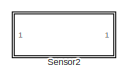
[diagram: root canvas - part 1/3, top center region]
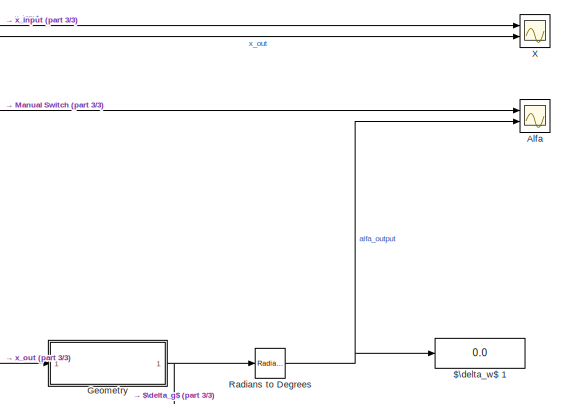
[diagram: root canvas - part 2/3, middle right region]
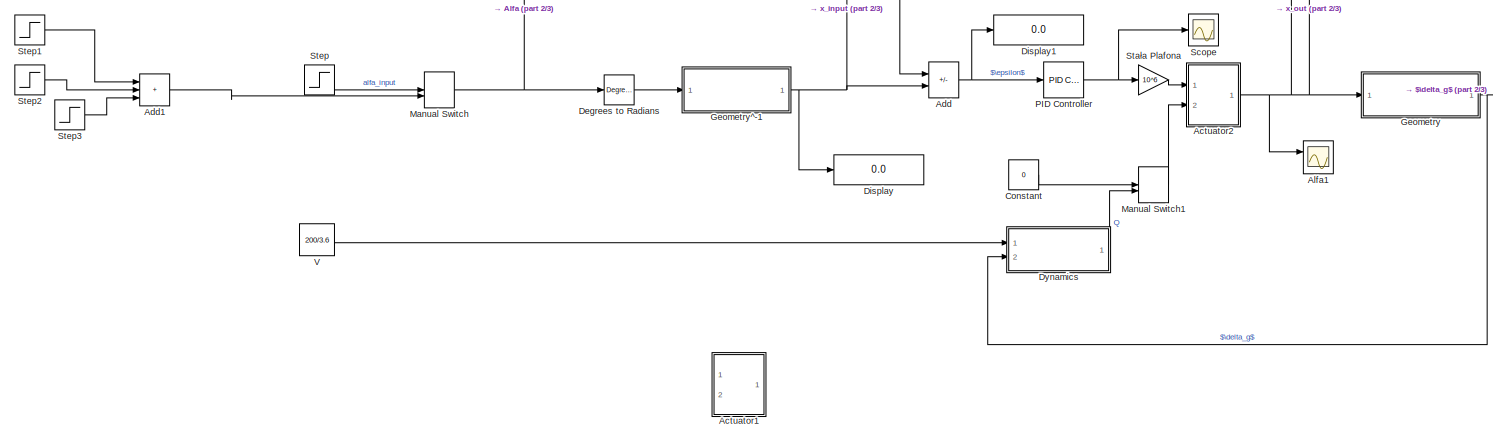
[diagram: root canvas - part 3/3, full width, bottom band]
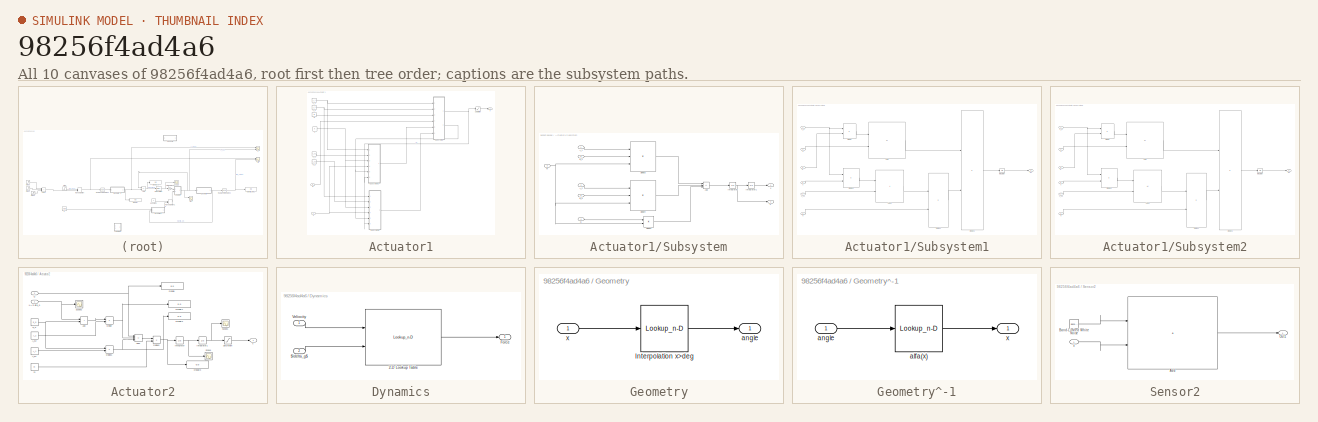
[diagram: thumbnail index - all 10 canvases of the model, root first then tree order]
MODEL slx_98256f4ad4a6
KIND model
CONFIG AbsTol = auto
CONFIG EnableMultiTasking = off
CONFIG FixedStep = auto
CONFIG MaxStep = auto
CONFIG MinStep = auto
CONFIG RelTol = 1e-3
CONFIG SampleTimeConstraint = Unconstrained
CONFIG SolverName = VariableStepAuto
CONFIG StartTime = 0.0
CONFIG StopTime = 2
BLOCK [Display] $\delta_w$ 1
  Decimation = 1
  Ports = [1]
BLOCK [SubSystem] Actuator1
  Commented = on
  Ports = [2, 1]
  RequestExecContextInheritance = off
BLOCK [Constant] Actuator1/A_1
  Value = A_1
BLOCK [Constant] Actuator1/A_2
  Value = A_2
BLOCK [Constant] Actuator1/K
  Value = K
BLOCK [Inport] Actuator1/Q
  Port = 2
BLOCK [Saturate] Actuator1/Saturation
  LowerLimit = x_min
  UpperLimit = x_max
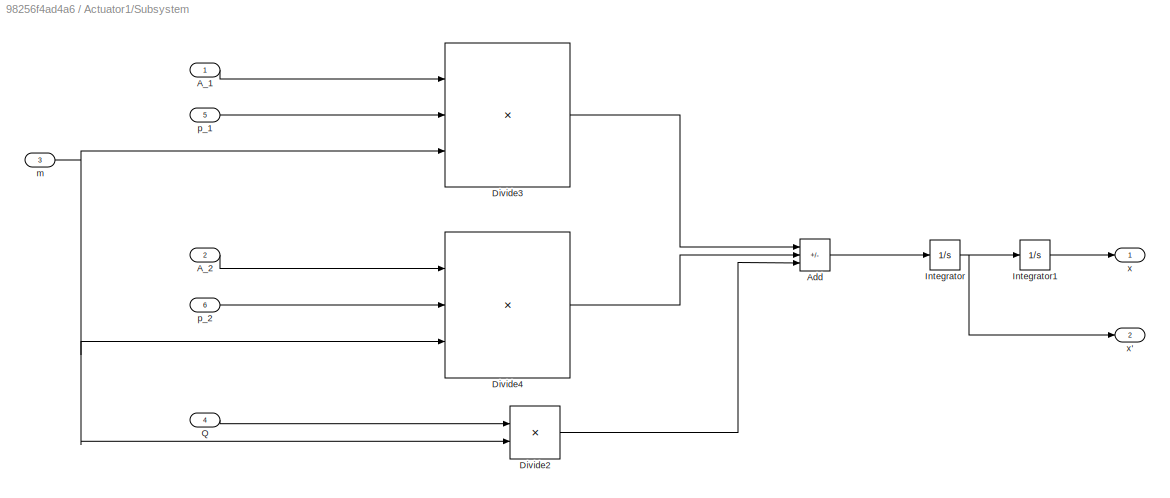
BLOCK [SubSystem] Actuator1/Subsystem
  Ports = [6, 2]
  RequestExecContextInheritance = off
BLOCK [Inport] Actuator1/Subsystem/A_1
BLOCK [Inport] Actuator1/Subsystem/A_2
  Port = 2
BLOCK [Sum] Actuator1/Subsystem/Add
  IconShape = rectangular
  Inputs = +-+
  Ports = [3, 1]
BLOCK [Product] Actuator1/Subsystem/Divide2
  Inputs = */
  Ports = [2, 1]
BLOCK [Product] Actuator1/Subsystem/Divide3
  Inputs = **/
  Ports = [3, 1]
BLOCK [Product] Actuator1/Subsystem/Divide4
  Inputs = **/
  Ports = [3, 1]
BLOCK [Integrator] Actuator1/Subsystem/Integrator
  Ports = [1, 1]
BLOCK [Integrator] Actuator1/Subsystem/Integrator1
  Ports = [1, 1]
BLOCK [Inport] Actuator1/Subsystem/Q
  Port = 4
BLOCK [Inport] Actuator1/Subsystem/m
  Port = 3
BLOCK [Inport] Actuator1/Subsystem/p_1
  Port = 5
BLOCK [Inport] Actuator1/Subsystem/p_2
  Port = 6
BLOCK [Outport] Actuator1/Subsystem/x
BLOCK [Outport] Actuator1/Subsystem/x'
  Port = 2
BLOCK [SubSystem] Actuator1/Subsystem1
  Ports = [6, 1]
  RequestExecContextInheritance = off
BLOCK [Inport] Actuator1/Subsystem1/A_1
BLOCK [Sum] Actuator1/Subsystem1/Add
  IconShape = rectangular
  Inputs = -+
  Ports = [2, 1]
BLOCK [Sum] Actuator1/Subsystem1/Add1
  IconShape = rectangular
  Ports = [2, 1]
BLOCK [Product] Actuator1/Subsystem1/Divide
  Inputs = **
  Ports = [2, 1]
BLOCK [Product] Actuator1/Subsystem1/Divide1
  Inputs = **
  Ports = [2, 1]
BLOCK [Product] Actuator1/Subsystem1/Divide2
  Inputs = */
  Ports = [2, 1]
BLOCK [Product] Actuator1/Subsystem1/Divide3
  Inputs = */
  Ports = [2, 1]
BLOCK [Integrator] Actuator1/Subsystem1/Integrator
  Ports = [1, 1]
BLOCK [Inport] Actuator1/Subsystem1/K
  Port = 3
BLOCK [Inport] Actuator1/Subsystem1/V_01
  Port = 2
BLOCK [Outport] Actuator1/Subsystem1/p1
BLOCK [Inport] Actuator1/Subsystem1/u
  Port = 4
BLOCK [Inport] Actuator1/Subsystem1/x
  Port = 6
BLOCK [Inport] Actuator1/Subsystem1/x'
  Port = 5
BLOCK [SubSystem] Actuator1/Subsystem2
  Ports = [6, 1]
  RequestExecContextInheritance = off
BLOCK [Inport] Actuator1/Subsystem2/A_2
BLOCK [Sum] Actuator1/Subsystem2/Add
  IconShape = rectangular
  Inputs = +-
  Ports = [2, 1]
BLOCK [Sum] Actuator1/Subsystem2/Add1
  IconShape = rectangular
  Inputs = -+
  Ports = [2, 1]
BLOCK [Product] Actuator1/Subsystem2/Divide
  Inputs = **
  Ports = [2, 1]
BLOCK [Product] Actuator1/Subsystem2/Divide1
  Inputs = **
  Ports = [2, 1]
BLOCK [Product] Actuator1/Subsystem2/Divide2
  Inputs = */
  Ports = [2, 1]
BLOCK [Product] Actuator1/Subsystem2/Divide3
  Inputs = */
  Ports = [2, 1]
BLOCK [Integrator] Actuator1/Subsystem2/Integrator
  Ports = [1, 1]
BLOCK [Inport] Actuator1/Subsystem2/K
  Port = 3
BLOCK [Inport] Actuator1/Subsystem2/V_02
  Port = 2
BLOCK [Outport] Actuator1/Subsystem2/p2
BLOCK [Inport] Actuator1/Subsystem2/u
  Port = 4
BLOCK [Inport] Actuator1/Subsystem2/x
  Port = 6
BLOCK [Inport] Actuator1/Subsystem2/x'
  Port = 5
BLOCK [Constant] Actuator1/V_1
  Value = V_01
BLOCK [Constant] Actuator1/V_2
  Value = V_02
BLOCK [Constant] Actuator1/m
  Value = m
BLOCK [Inport] Actuator1/u
BLOCK [Outport] Actuator1/x
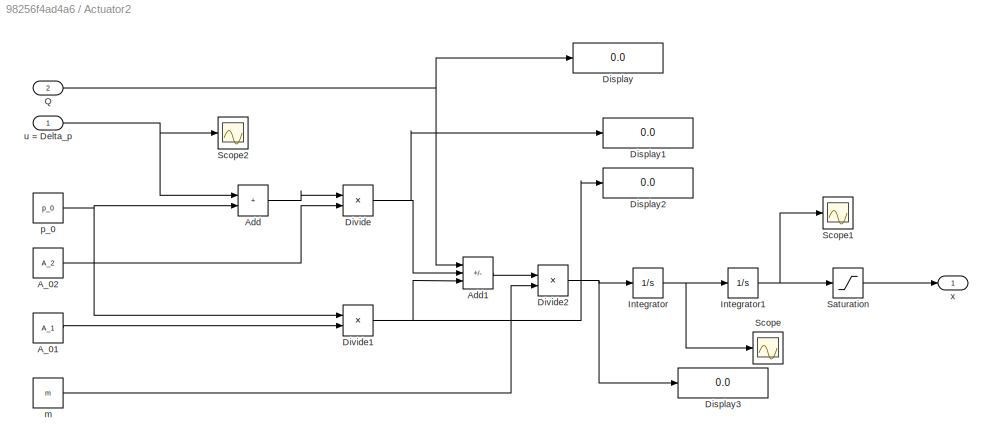
BLOCK [SubSystem] Actuator2
  Ports = [2, 1]
  RequestExecContextInheritance = off
BLOCK [Constant] Actuator2/A_01
  Value = A_1
BLOCK [Constant] Actuator2/A_02
  Value = A_2
BLOCK [Sum] Actuator2/Add
  IconShape = rectangular
  Ports = [2, 1]
BLOCK [Sum] Actuator2/Add1
  IconShape = rectangular
  Inputs = +-+
  Ports = [3, 1]
BLOCK [Display] Actuator2/Display
  Decimation = 1
  Ports = [1]
BLOCK [Display] Actuator2/Display1
  Decimation = 1
  Ports = [1]
BLOCK [Display] Actuator2/Display2
  Decimation = 1
  Ports = [1]
BLOCK [Display] Actuator2/Display3
  Decimation = 1
  Ports = [1]
BLOCK [Product] Actuator2/Divide
  Inputs = **
  Ports = [2, 1]
BLOCK [Product] Actuator2/Divide1
  Inputs = **
  Ports = [2, 1]
BLOCK [Product] Actuator2/Divide2
  Inputs = */
  Ports = [2, 1]
BLOCK [Integrator] Actuator2/Integrator
  Ports = [1, 1]
BLOCK [Integrator] Actuator2/Integrator1
  Ports = [1, 1]
BLOCK [Inport] Actuator2/Q
  Port = 2
BLOCK [Saturate] Actuator2/Saturation
  LowerLimit = x_min
  UpperLimit = x_max
BLOCK [Scope] Actuator2/Scope
  Floating = off
  NumInputPorts = 1
  Ports = [1]
  ScopeSpecificationString = Simulink.scopes.TimeScopeBlockCfg('CurrentConfiguration', extmgr.ConfigurationSet(extmgr.Configuration('Core','General UI',true),extmgr.Configuration('Core','Source UI',true),extmgr.Configuration('Sources','WiredSimulink',true,'DataLoggingVariableName','ScopeData1'),extmgr.Configuration('Visuals','Time Domain',true,'SerializedDisplays',{struct('MinYLimReal','-23.12676','MaxYLimReal','32.29168','YL...<+1375ch>
BLOCK [Scope] Actuator2/Scope1
  Floating = off
  NumInputPorts = 1
  Ports = [1]
  ScopeSpecificationString = Simulink.scopes.TimeScopeBlockCfg('CurrentConfiguration', extmgr.ConfigurationSet(extmgr.Configuration('Core','General UI',true),extmgr.Configuration('Core','Source UI',true),extmgr.Configuration('Sources','WiredSimulink',true,'DataLoggingVariableName','ScopeData2'),extmgr.Configuration('Visuals','Time Domain',true,'SerializedDisplays',{struct('MinYLimReal','-0.00303','MaxYLimReal','0.02726','YLab...<+1370ch>
BLOCK [Scope] Actuator2/Scope2
  Floating = off
  NumInputPorts = 1
  Ports = [1]
  ScopeSpecificationString = Simulink.scopes.TimeScopeBlockCfg('CurrentConfiguration', extmgr.ConfigurationSet(extmgr.Configuration('Core','General UI',true),extmgr.Configuration('Core','Source UI',true),extmgr.Configuration('Sources','WiredSimulink',true,'DataLoggingVariableName','ScopeData3'),extmgr.Configuration('Visuals','Time Domain',true,'SerializedDisplays',{struct('MinYLimReal','-87500.00000','MaxYLimReal','87500.0000...<+1400ch>
BLOCK [Constant] Actuator2/m
  Value = m
BLOCK [Constant] Actuator2/p_0
  Value = p_0
BLOCK [Inport] Actuator2/u = Delta_p
BLOCK [Outport] Actuator2/x
BLOCK [Sum] Add
  IconShape = rectangular
  Inputs = -+
  Ports = [2, 1]
BLOCK [Sum] Add1
  IconShape = rectangular
  Inputs = +++
  Ports = [3, 1]
BLOCK [Scope] Alfa
  Floating = off
  NumInputPorts = 2
  Ports = [2]
  ScopeSpecificationString = Simulink.scopes.TimeScopeBlockCfg('CurrentConfiguration', extmgr.ConfigurationSet(extmgr.Configuration('Core','General UI',true),extmgr.Configuration('Core','Source UI',true),extmgr.Configuration('Sources','WiredSimulink',true),extmgr.Configuration('Visuals','Time Domain',true,'SerializedDisplays',{struct('MinYLimReal','-0.64853','MaxYLimReal','5.83675','YLabelReal','','MinYLimMag','0.00000','MaxY...<+1382ch>
BLOCK [Scope] Alfa1
  Floating = off
  NumInputPorts = 2
  Ports = [2]
  ScopeSpecificationString = Simulink.scopes.TimeScopeBlockCfg('CurrentConfiguration', extmgr.ConfigurationSet(extmgr.Configuration('Core','General UI',true),extmgr.Configuration('Core','Source UI',true),extmgr.Configuration('Sources','WiredSimulink',true,'DataLoggingVariableName','ScopeData1'),extmgr.Configuration('Visuals','Time Domain',true,'SerializedDisplays',{struct('MinYLimReal','-0.00303','MaxYLimReal','0.02726','YLab...<+1481ch>
BLOCK [Constant] Constant
  Value = 0
BLOCK [Reference] Degrees to Radians  REF=simulink_extras/Transformations/Degrees to
Radians
  Ports = [1, 1]
  SourceBlock = simulink_extras/Transformations/Degrees to\nRadians
  SourceProductBaseCode = SL
  SourceType = DegreesToRadians
BLOCK [Display] Display
  Decimation = 1
  Ports = [1]
BLOCK [Display] Display1
  Decimation = 1
  Ports = [1]
BLOCK [SubSystem] Dynamics
  Ports = [2, 1]
  RequestExecContextInheritance = off
BLOCK [Inport] Dynamics/$\delta_g$
  Port = 2
BLOCK [Lookup_n-D] Dynamics/2-D Lookup Table
  BreakpointsForDimension1 = velocity
  BreakpointsForDimension2 = angles
  InputPortMap = u0,u1
  InternalRulePriority = Speed
  Ports = [2, 1]
  RndMeth = Simplest
  Table = F_force
BLOCK [Outport] Dynamics/Force
BLOCK [Inport] Dynamics/Veliocity
BLOCK [SubSystem] Geometry
  Ports = [1, 1]
  RequestExecContextInheritance = off
BLOCK [Lookup_n-D] Geometry/Interpolation x>deg
  BreakpointsForDimension1 = X
  InputPortMap = u0
  InternalRulePriority = Speed
  NumberOfTableDimensions = 1
  Ports = [1, 1]
  RndMeth = Simplest
  Table = RAD
BLOCK [Outport] Geometry/angle
BLOCK [Inport] Geometry/x 
BLOCK [SubSystem] Geometry^-1
  Ports = [1, 1]
  RequestExecContextInheritance = off
BLOCK [Lookup_n-D] Geometry^-1/alfa(x)
  BreakpointsForDimension1 = RAD
  InputPortMap = u0
  InternalRulePriority = Speed
  NumberOfTableDimensions = 1
  Ports = [1, 1]
  RndMeth = Simplest
  Table = X
BLOCK [Inport] Geometry^-1/angle
BLOCK [Outport] Geometry^-1/x
BLOCK [ManualSwitch] Manual Switch
  CurrentSetting = 0
BLOCK [ManualSwitch] Manual Switch1
  CurrentSetting = 0
BLOCK [Reference] PID Controller  REF=slpidlib/PID Controller
  Ports = [1, 1]
  SourceBlock = slpidlib/PID Controller
  SourceProductBaseCode = SL
  SourceType = PID 1dof
BLOCK [Reference] Radians to Degrees  REF=simulink_extras/Transformations/Radians
to Degrees
  Ports = [1, 1]
  SourceBlock = simulink_extras/Transformations/Radians\nto Degrees
  SourceProductBaseCode = SL
  SourceType = RadiansToDegrees
BLOCK [Scope] Scope
  Floating = off
  NumInputPorts = 1
  Ports = [1]
  ScopeSpecificationString = Simulink.scopes.TimeScopeBlockCfg('CurrentConfiguration', extmgr.ConfigurationSet(extmgr.Configuration('Core','General UI',true),extmgr.Configuration('Core','Source UI',true),extmgr.Configuration('Sources','WiredSimulink',true,'DataLoggingVariableName','ScopeData2'),extmgr.Configuration('Visuals','Time Domain',true,'SerializedDisplays',{struct('MinYLimReal','-0.1125','MaxYLimReal','0.1125','YLabel...<+1367ch>
BLOCK [SubSystem] Sensor2
  NameLocation = top
  Ports = [1, 1]
  RequestExecContextInheritance = off
BLOCK [Sum] Sensor2/Add
  IconShape = rectangular
  Ports = [2, 1]
BLOCK [Reference] Sensor2/Band-Limited White Noise  REF=simulink/Sources/Band-Limited
White Noise
  Ports = [0, 1]
  SourceBlock = simulink/Sources/Band-Limited\nWhite Noise
  SourceProductBaseCode = SL
  SourceType = Band-Limited White Noise.
BLOCK [Outport] Sensor2/Out1
BLOCK [Inport] Sensor2/x
BLOCK [Gain] Stała Plafona
  Gain = 10^6
BLOCK [Step] Step
  SampleTime = 0
BLOCK [Step] Step1
  SampleTime = 0
  Time = 0.5
BLOCK [Step] Step2
  After = 2
  Before = 1
  SampleTime = 0
BLOCK [Step] Step3
  After = 0
  Before = 2
  SampleTime = 0
  Time = 1.5
BLOCK [Constant] V
  Value = 200/3.6
BLOCK [Scope] X
  Floating = off
  NumInputPorts = 2
  Ports = [2]
  ScopeSpecificationString = Simulink.scopes.TimeScopeBlockCfg('CurrentConfiguration', extmgr.ConfigurationSet(extmgr.Configuration('Core','General UI',true),extmgr.Configuration('Core','Source UI',true),extmgr.Configuration('Sources','WiredSimulink',true,'DataLoggingVariableName','ScopeData1'),extmgr.Configuration('Visuals','Time Domain',true,'SerializedDisplays',{struct('MinYLimReal','-0.00303','MaxYLimReal','0.02726','YLab...<+1403ch>
NET Actuator1/A_1:1 -> Actuator1/Subsystem1:1, Actuator1/Subsystem:1
NET Actuator1/A_2:1 -> Actuator1/Subsystem2:1, Actuator1/Subsystem:2
NET Actuator1/K:1 -> Actuator1/Subsystem1:3, Actuator1/Subsystem2:3
LINE Actuator1/Q:1 -> Actuator1/Subsystem:4
LINE Actuator1/Saturation:1 -> Actuator1/x:1
LINE Actuator1/Subsystem/A_1:1 -> Actuator1/Subsystem/Divide3:1
LINE Actuator1/Subsystem/A_2:1 -> Actuator1/Subsystem/Divide4:1
LINE Actuator1/Subsystem/Add:1 -> Actuator1/Subsystem/Integrator:1
LINE Actuator1/Subsystem/Divide2:1 -> Actuator1/Subsystem/Add:3
LINE Actuator1/Subsystem/Divide3:1 -> Actuator1/Subsystem/Add:1
LINE Actuator1/Subsystem/Divide4:1 -> Actuator1/Subsystem/Add:2
LINE Actuator1/Subsystem/Integrator1:1 -> Actuator1/Subsystem/x:1
NET Actuator1/Subsystem/Integrator:1 -> Actuator1/Subsystem/Integrator1:1, Actuator1/Subsystem/x':1
LINE Actuator1/Subsystem/Q:1 -> Actuator1/Subsystem/Divide2:1
NET Actuator1/Subsystem/m:1 -> Actuator1/Subsystem/Divide2:2, Actuator1/Subsystem/Divide3:3, Actuator1/Subsystem/Divide4:3
LINE Actuator1/Subsystem/p_1:1 -> Actuator1/Subsystem/Divide3:2
LINE Actuator1/Subsystem/p_2:1 -> Actuator1/Subsystem/Divide4:2
NET Actuator1/Subsystem1/A_1:1 -> Actuator1/Subsystem1/Divide1:1, Actuator1/Subsystem1/Divide:1
LINE Actuator1/Subsystem1/Add1:1 -> Actuator1/Subsystem1/Divide2:1
LINE Actuator1/Subsystem1/Add:1 -> Actuator1/Subsystem1/Divide3:1
LINE Actuator1/Subsystem1/Divide1:1 -> Actuator1/Subsystem1/Add1:1
LINE Actuator1/Subsystem1/Divide2:1 -> Actuator1/Subsystem1/Divide3:2
LINE Actuator1/Subsystem1/Divide3:1 -> Actuator1/Subsystem1/Integrator:1
LINE Actuator1/Subsystem1/Divide:1 -> Actuator1/Subsystem1/Add:1
LINE Actuator1/Subsystem1/Integrator:1 -> Actuator1/Subsystem1/p1:1
LINE Actuator1/Subsystem1/K:1 -> Actuator1/Subsystem1/Divide2:2
LINE Actuator1/Subsystem1/V_01:1 -> Actuator1/Subsystem1/Add1:2
LINE Actuator1/Subsystem1/u:1 -> Actuator1/Subsystem1/Add:2
LINE Actuator1/Subsystem1/x':1 -> Actuator1/Subsystem1/Divide:2
LINE Actuator1/Subsystem1/x:1 -> Actuator1/Subsystem1/Divide1:2
LINE Actuator1/Subsystem1:1 -> Actuator1/Subsystem:5
NET Actuator1/Subsystem2/A_2:1 -> Actuator1/Subsystem2/Divide1:1, Actuator1/Subsystem2/Divide:1
LINE Actuator1/Subsystem2/Add1:1 -> Actuator1/Subsystem2/Divide2:1
LINE Actuator1/Subsystem2/Add:1 -> Actuator1/Subsystem2/Divide3:1
LINE Actuator1/Subsystem2/Divide1:1 -> Actuator1/Subsystem2/Add1:1
LINE Actuator1/Subsystem2/Divide2:1 -> Actuator1/Subsystem2/Divide3:2
LINE Actuator1/Subsystem2/Divide3:1 -> Actuator1/Subsystem2/Integrator:1
LINE Actuator1/Subsystem2/Divide:1 -> Actuator1/Subsystem2/Add:1
LINE Actuator1/Subsystem2/Integrator:1 -> Actuator1/Subsystem2/p2:1
LINE Actuator1/Subsystem2/K:1 -> Actuator1/Subsystem2/Divide2:2
LINE Actuator1/Subsystem2/V_02:1 -> Actuator1/Subsystem2/Add1:2
LINE Actuator1/Subsystem2/u:1 -> Actuator1/Subsystem2/Add:2
LINE Actuator1/Subsystem2/x':1 -> Actuator1/Subsystem2/Divide:2
LINE Actuator1/Subsystem2/x:1 -> Actuator1/Subsystem2/Divide1:2
LINE Actuator1/Subsystem2:1 -> Actuator1/Subsystem:6
NET Actuator1/Subsystem:1 -> Actuator1/Saturation:1, Actuator1/Subsystem1:6, Actuator1/Subsystem2:6
NET Actuator1/Subsystem:2 -> Actuator1/Subsystem1:5, Actuator1/Subsystem2:5
LINE Actuator1/V_1:1 -> Actuator1/Subsystem1:2
LINE Actuator1/V_2:1 -> Actuator1/Subsystem2:2
LINE Actuator1/m:1 -> Actuator1/Subsystem:3
NET Actuator1/u:1 -> Actuator1/Subsystem1:4, Actuator1/Subsystem2:4
LINE Actuator2/A_01:1 -> Actuator2/Divide1:2
LINE Actuator2/A_02:1 -> Actuator2/Divide:2
LINE Actuator2/Add1:1 -> Actuator2/Divide2:1
LINE Actuator2/Add:1 -> Actuator2/Divide:1
NET Actuator2/Divide1:1 -> Actuator2/Add1:3, Actuator2/Display2:1
NET Actuator2/Divide2:1 -> Actuator2/Display3:1, Actuator2/Integrator:1
NET Actuator2/Divide:1 -> Actuator2/Add1:2, Actuator2/Display1:1
NET Actuator2/Integrator1:1 -> Actuator2/Saturation:1, Actuator2/Scope1:1
NET Actuator2/Integrator:1 -> Actuator2/Integrator1:1, Actuator2/Scope:1
NET Actuator2/Q:1 -> Actuator2/Add1:1, Actuator2/Display:1
LINE Actuator2/Saturation:1 -> Actuator2/x:1
LINE Actuator2/m:1 -> Actuator2/Divide2:2
NET Actuator2/p_0:1 -> Actuator2/Add:2, Actuator2/Divide1:1
NET Actuator2/u = Delta_p:1 -> Actuator2/Add:1, Actuator2/Scope2:1
NET Actuator2:1 -> Add:1, Alfa1:1, Geometry:1, X:2
LINE Add1:1 -> Manual Switch:2
NET Add:1 -> Display1:1, PID Controller:1
LINE Constant:1 -> Manual Switch1:1
LINE Degrees to Radians:1 -> Geometry^-1:1
LINE Dynamics/$\delta_g$:1 -> Dynamics/2-D Lookup Table:2
LINE Dynamics/2-D Lookup Table:1 -> Dynamics/Force:1
LINE Dynamics/Veliocity:1 -> Dynamics/2-D Lookup Table:1
LINE Dynamics:1 -> Manual Switch1:2
LINE Geometry/Interpolation x>deg:1 -> Geometry/angle:1
LINE Geometry/x :1 -> Geometry/Interpolation x>deg:1
NET Geometry:1 -> Dynamics:2, Radians to Degrees:1
LINE Geometry^-1/alfa(x):1 -> Geometry^-1/x:1
LINE Geometry^-1/angle:1 -> Geometry^-1/alfa(x):1
NET Geometry^-1:1 -> Add:2, Display:1, X:1
LINE Manual Switch1:1 -> Actuator2:2
NET Manual Switch:1 -> Alfa:1, Degrees to Radians:1
NET PID Controller:1 -> Scope:1, Stała Plafona:1
NET Radians to Degrees:1 -> $\delta_w$ 1:1, Alfa:2
LINE Sensor2/Add:1 -> Sensor2/Out1:1
LINE Sensor2/Band-Limited White Noise:1 -> Sensor2/Add:1
LINE Sensor2/x:1 -> Sensor2/Add:2
LINE Stała Plafona:1 -> Actuator2:1
LINE Step1:1 -> Add1:1
LINE Step2:1 -> Add1:2
LINE Step3:1 -> Add1:3
LINE Step:1 -> Manual Switch:1
LINE V:1 -> Dynamics:1
note: NET lines group one-source signal fan-out (src -> all destinations, sorted); 1:1 wires keep LINE
